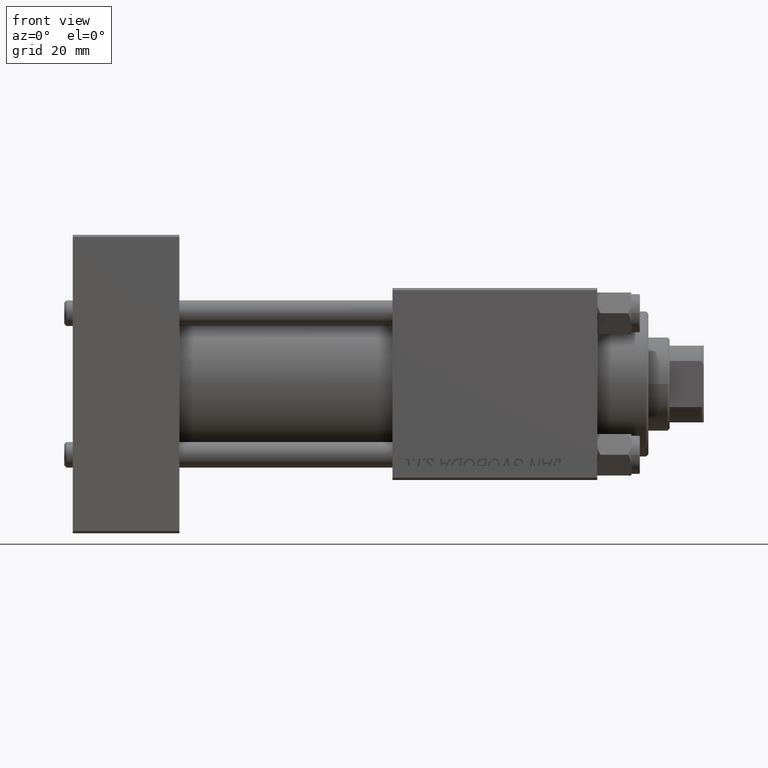
[diagram: clean part render]
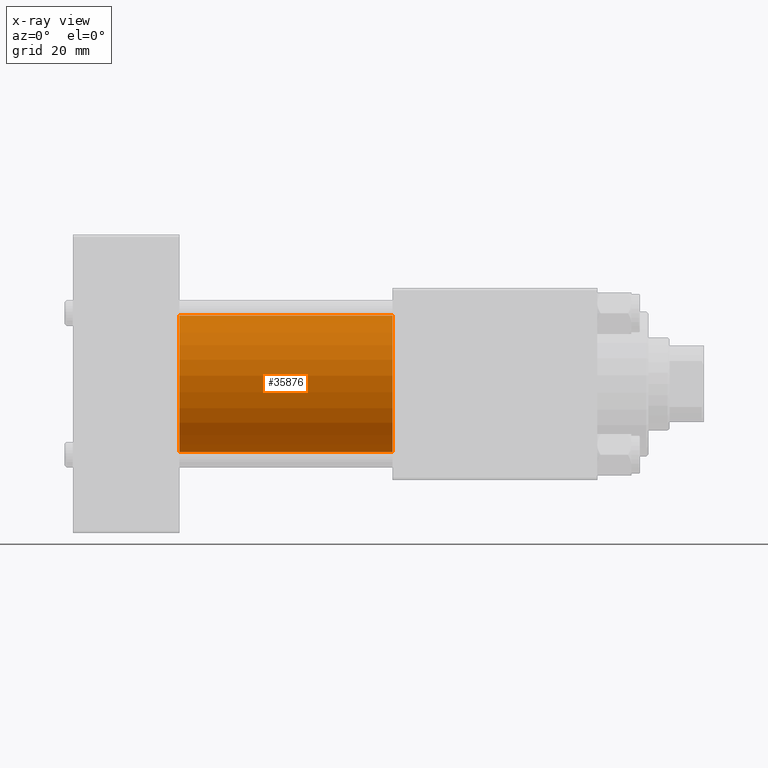
[diagram: x-ray — body ghosted, one internal face saturated and labeled with its STEP entity id]
A machine part, front view, then the same camera in x-ray: the body is ghosted and one INTERNAL B-rep face — a face not visible from any outside direction — is saturated and labeled: STEP entity #35876.
In plain terms, the highlighted cylindrical surface (partial cylindrical patch) has radius 16 mm, axis along (-1, -0, -0).
Its self-contained STEP definition (entity closure, byte-faithful):
#859 = DIRECTION ( 'NONE',  ( 0.000000000000000000, 0.000000000000000000, -1.000000000000000000 ) ) ;
#5147 = CARTESIAN_POINT ( 'NONE',  ( 75.00000000000001421, -2.602085213965210642E-15, 0.000000000000000000 ) ) ;
#6178 = AXIS2_PLACEMENT_3D ( 'NONE', #21095, #9218, #47884 ) ;
#7824 = CARTESIAN_POINT ( 'NONE',  ( 75.00000000000001421, -6.426503353294456087E-16, -16.00000000000000000 ) ) ;
#7850 = ORIENTED_EDGE ( 'NONE', *, *, #33428, .T. ) ;
#9218 = DIRECTION ( 'NONE',  ( -1.000000000000000000, -0.000000000000000000, -0.000000000000000000 ) ) ;
#10330 = DIRECTION ( 'NONE',  ( 1.000000000000000000, 0.000000000000000000, 0.000000000000000000 ) ) ;
#11120 = VERTEX_POINT ( 'NONE', #40223 ) ;
#13028 = CARTESIAN_POINT ( 'NONE',  ( 25.00000000000000000, -6.426503353294456087E-16, -16.00000000000000000 ) ) ;
#14116 = CARTESIAN_POINT ( 'NONE',  ( 25.00000000000000000, -2.602085213965210642E-15, 0.000000000000000000 ) ) ;
#14742 = ORIENTED_EDGE ( 'NONE', *, *, #20779, .F. ) ;
#16580 = AXIS2_PLACEMENT_3D ( 'NONE', #5147, #24354, #859 ) ;
#17226 = VERTEX_POINT ( 'NONE', #43580 ) ;
#19426 = VERTEX_POINT ( 'NONE', #13028 ) ;
#19532 = VERTEX_POINT ( 'NONE', #46314 ) ;
#20779 = EDGE_CURVE ( 'NONE', #19532, #19426, #33232, .T. ) ;
#21095 = CARTESIAN_POINT ( 'NONE',  ( 75.00000000000001421, -2.602085213965210642E-15, 0.000000000000000000 ) ) ;
#22550 = ORIENTED_EDGE ( 'NONE', *, *, #49109, .F. ) ;
#23664 = DIRECTION ( 'NONE',  ( -1.000000000000000000, -0.000000000000000000, -0.000000000000000000 ) ) ;
#24354 = DIRECTION ( 'NONE',  ( 1.000000000000000000, 0.000000000000000000, 0.000000000000000000 ) ) ;
#24629 = CYLINDRICAL_SURFACE ( 'NONE', #6178, 16.00000000000000000 ) ;
#25729 = DIRECTION ( 'NONE',  ( 0.000000000000000000, 0.000000000000000000, -1.000000000000000000 ) ) ;
#27023 = LINE ( 'NONE', #7824, #27269 ) ;
#27269 = VECTOR ( 'NONE', #35090, 1000.000000000000000 ) ;
#28155 = FACE_OUTER_BOUND ( 'NONE', #33453, .T. ) ;
#28446 = CARTESIAN_POINT ( 'NONE',  ( 75.00000000000001421, -2.602085213965210642E-15, 16.00000000000000000 ) ) ;
#33232 = CIRCLE ( 'NONE', #42108, 16.00000000000000000 ) ;
#33428 = EDGE_CURVE ( 'NONE', #11120, #17226, #38380, .T. ) ;
#33453 = EDGE_LOOP ( 'NONE', ( #7850, #47385, #14742, #22550 ) ) ;
#35090 = DIRECTION ( 'NONE',  ( -1.000000000000000000, -0.000000000000000000, -0.000000000000000000 ) ) ;
#35257 = LINE ( 'NONE', #28446, #43855 ) ;
#35876 = ADVANCED_FACE ( 'NONE', ( #28155 ), #24629, .F. ) ;
#38380 = CIRCLE ( 'NONE', #16580, 16.00000000000000000 ) ;
#39240 = EDGE_CURVE ( 'NONE', #17226, #19426, #27023, .T. ) ;
#40223 = CARTESIAN_POINT ( 'NONE',  ( 75.00000000000001421, -2.602085213965210642E-15, 16.00000000000000000 ) ) ;
#42108 = AXIS2_PLACEMENT_3D ( 'NONE', #14116, #10330, #25729 ) ;
#43580 = CARTESIAN_POINT ( 'NONE',  ( 75.00000000000001421, -6.426503353294456087E-16, -16.00000000000000000 ) ) ;
#43855 = VECTOR ( 'NONE', #23664, 1000.000000000000000 ) ;
#46314 = CARTESIAN_POINT ( 'NONE',  ( 25.00000000000000000, -2.602085213965210642E-15, 16.00000000000000000 ) ) ;
#47385 = ORIENTED_EDGE ( 'NONE', *, *, #39240, .T. ) ;
#47884 = DIRECTION ( 'NONE',  ( 0.000000000000000000, 0.000000000000000000, 1.000000000000000000 ) ) ;
#49109 = EDGE_CURVE ( 'NONE', #11120, #19532, #35257, .T. ) ;